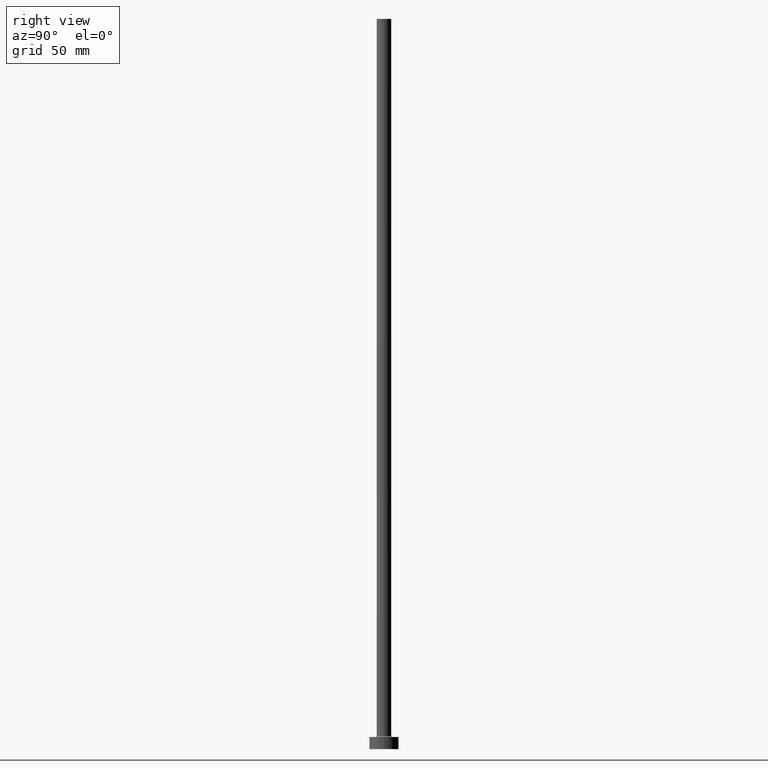
[diagram: clean part render]
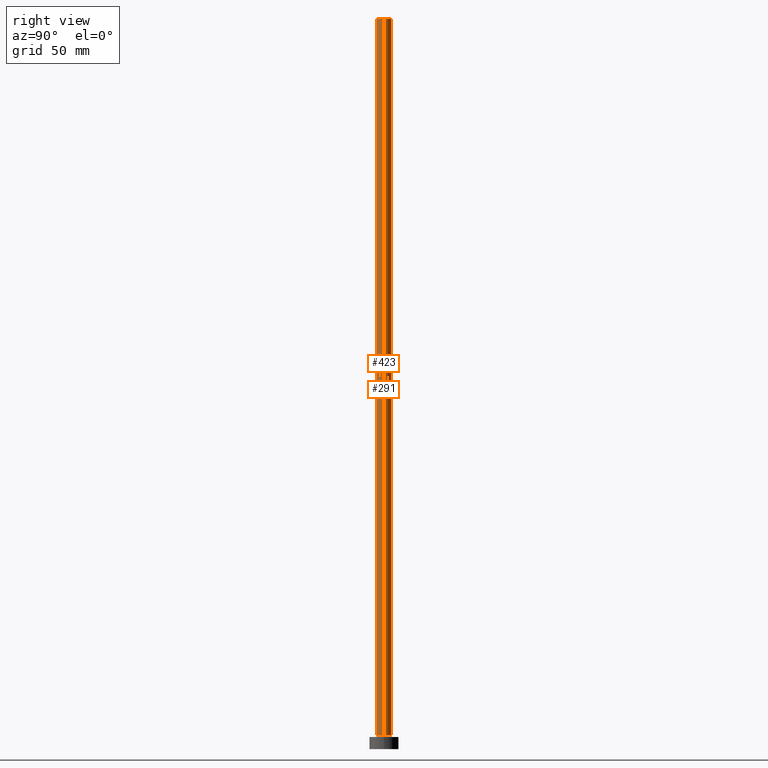
[diagram: same view with one multi-face feature highlighted, each face labeled with its STEP entity id]
A machine part, right view. The highlighted faces form ONE feature: a constant-radius fillet chain: 2 tangent blend faces with common blend radius 3 mm. The faces share edges in the B-rep.
Their STEP definitions:
[1] entity #291 (Cylinder):
#3 = VECTOR ( 'NONE', #429, 1000.000000000000000 ) ;
#9 = VERTEX_POINT ( 'NONE', #264 ) ;
#13 = CARTESIAN_POINT ( 'NONE',  ( -3.000000000000000444, 0.000000000000000000, 300.0000000000000000 ) ) ;
#25 = DIRECTION ( 'NONE',  ( -0.000000000000000000, -0.000000000000000000, -1.000000000000000000 ) ) ;
#28 = CIRCLE ( 'NONE', #298, 3.000000000000000444 ) ;
#44 = LINE ( 'NONE', #13, #77 ) ;
#64 = EDGE_CURVE ( 'NONE', #335, #323, #44, .T. ) ;
#70 = CARTESIAN_POINT ( 'NONE',  ( 0.000000000000000000, 0.000000000000000000, 5.500000000000005329 ) ) ;
#77 = VECTOR ( 'NONE', #203, 1000.000000000000000 ) ;
#86 = DIRECTION ( 'NONE',  ( 1.000000000000000000, 0.000000000000000000, 0.000000000000000000 ) ) ;
#137 = EDGE_CURVE ( 'NONE', #9, #443, #194, .T. ) ;
#194 = LINE ( 'NONE', #293, #3 ) ;
#199 = EDGE_CURVE ( 'NONE', #9, #335, #28, .T. ) ;
#200 = AXIS2_PLACEMENT_3D ( 'NONE', #70, #354, #320 ) ;
#203 = DIRECTION ( 'NONE',  ( -0.000000000000000000, -0.000000000000000000, -1.000000000000000000 ) ) ;
#231 = AXIS2_PLACEMENT_3D ( 'NONE', #358, #25, #318 ) ;
#237 = EDGE_CURVE ( 'NONE', #443, #323, #400, .T. ) ;
#257 = EDGE_LOOP ( 'NONE', ( #302, #422, #433, #279 ) ) ;
#264 = CARTESIAN_POINT ( 'NONE',  ( 3.000000000000000444, 3.673940397442060361E-16, 300.0000000000000000 ) ) ;
#268 = FACE_OUTER_BOUND ( 'NONE', #257, .T. ) ;
#279 = ORIENTED_EDGE ( 'NONE', *, *, #64, .F. ) ;
#291 = ADVANCED_FACE ( 'NONE', ( #268 ), #432, .T. ) ;
#293 = CARTESIAN_POINT ( 'NONE',  ( 3.000000000000000444, 3.673940397442060361E-16, 300.0000000000000000 ) ) ;
#298 = AXIS2_PLACEMENT_3D ( 'NONE', #430, #327, #86 ) ;
#302 = ORIENTED_EDGE ( 'NONE', *, *, #199, .F. ) ;
#318 = DIRECTION ( 'NONE',  ( -1.000000000000000000, 0.000000000000000000, 0.000000000000000000 ) ) ;
#320 = DIRECTION ( 'NONE',  ( 1.000000000000000000, 0.000000000000000000, 0.000000000000000000 ) ) ;
#323 = VERTEX_POINT ( 'NONE', #415 ) ;
#327 = DIRECTION ( 'NONE',  ( 0.000000000000000000, 0.000000000000000000, 1.000000000000000000 ) ) ;
#335 = VERTEX_POINT ( 'NONE', #439 ) ;
#354 = DIRECTION ( 'NONE',  ( 0.000000000000000000, 0.000000000000000000, 1.000000000000000000 ) ) ;
#358 = CARTESIAN_POINT ( 'NONE',  ( 0.000000000000000000, 0.000000000000000000, 300.0000000000000000 ) ) ;
#384 = CARTESIAN_POINT ( 'NONE',  ( 3.000000000000000444, 3.673940397442060361E-16, 5.500000000000005329 ) ) ;
#400 = CIRCLE ( 'NONE', #200, 3.000000000000000444 ) ;
#415 = CARTESIAN_POINT ( 'NONE',  ( -3.000000000000000444, 0.000000000000000000, 5.500000000000005329 ) ) ;
#422 = ORIENTED_EDGE ( 'NONE', *, *, #137, .T. ) ;
#429 = DIRECTION ( 'NONE',  ( -0.000000000000000000, -0.000000000000000000, -1.000000000000000000 ) ) ;
#430 = CARTESIAN_POINT ( 'NONE',  ( 0.000000000000000000, 0.000000000000000000, 300.0000000000000000 ) ) ;
#432 = CYLINDRICAL_SURFACE ( 'NONE', #231, 3.000000000000000444 ) ;
#433 = ORIENTED_EDGE ( 'NONE', *, *, #237, .T. ) ;
#439 = CARTESIAN_POINT ( 'NONE',  ( -3.000000000000000444, 0.000000000000000000, 300.0000000000000000 ) ) ;
#443 = VERTEX_POINT ( 'NONE', #384 ) ;
[2] entity #423 (Cylinder):
#3 = VECTOR ( 'NONE', #429, 1000.000000000000000 ) ;
#9 = VERTEX_POINT ( 'NONE', #264 ) ;
#13 = CARTESIAN_POINT ( 'NONE',  ( -3.000000000000000444, 0.000000000000000000, 300.0000000000000000 ) ) ;
#44 = LINE ( 'NONE', #13, #77 ) ;
#51 = AXIS2_PLACEMENT_3D ( 'NONE', #459, #153, #169 ) ;
#54 = CYLINDRICAL_SURFACE ( 'NONE', #161, 3.000000000000000444 ) ;
#64 = EDGE_CURVE ( 'NONE', #335, #323, #44, .T. ) ;
#77 = VECTOR ( 'NONE', #203, 1000.000000000000000 ) ;
#88 = CIRCLE ( 'NONE', #342, 3.000000000000000444 ) ;
#131 = ORIENTED_EDGE ( 'NONE', *, *, #308, .T. ) ;
#137 = EDGE_CURVE ( 'NONE', #9, #443, #194, .T. ) ;
#153 = DIRECTION ( 'NONE',  ( 0.000000000000000000, 0.000000000000000000, 1.000000000000000000 ) ) ;
#155 = CARTESIAN_POINT ( 'NONE',  ( 0.000000000000000000, 0.000000000000000000, 300.0000000000000000 ) ) ;
#161 = AXIS2_PLACEMENT_3D ( 'NONE', #177, #448, #253 ) ;
#169 = DIRECTION ( 'NONE',  ( 1.000000000000000000, 0.000000000000000000, 0.000000000000000000 ) ) ;
#177 = CARTESIAN_POINT ( 'NONE',  ( 0.000000000000000000, 0.000000000000000000, 300.0000000000000000 ) ) ;
#194 = LINE ( 'NONE', #293, #3 ) ;
#203 = DIRECTION ( 'NONE',  ( -0.000000000000000000, -0.000000000000000000, -1.000000000000000000 ) ) ;
#214 = EDGE_LOOP ( 'NONE', ( #311, #419, #316, #131 ) ) ;
#220 = DIRECTION ( 'NONE',  ( 0.000000000000000000, 0.000000000000000000, 1.000000000000000000 ) ) ;
#243 = EDGE_CURVE ( 'NONE', #335, #9, #88, .T. ) ;
#253 = DIRECTION ( 'NONE',  ( -1.000000000000000000, 0.000000000000000000, 0.000000000000000000 ) ) ;
#264 = CARTESIAN_POINT ( 'NONE',  ( 3.000000000000000444, 3.673940397442060361E-16, 300.0000000000000000 ) ) ;
#281 = FACE_OUTER_BOUND ( 'NONE', #214, .T. ) ;
#293 = CARTESIAN_POINT ( 'NONE',  ( 3.000000000000000444, 3.673940397442060361E-16, 300.0000000000000000 ) ) ;
#308 = EDGE_CURVE ( 'NONE', #323, #443, #424, .T. ) ;
#311 = ORIENTED_EDGE ( 'NONE', *, *, #137, .F. ) ;
#316 = ORIENTED_EDGE ( 'NONE', *, *, #64, .T. ) ;
#323 = VERTEX_POINT ( 'NONE', #415 ) ;
#335 = VERTEX_POINT ( 'NONE', #439 ) ;
#342 = AXIS2_PLACEMENT_3D ( 'NONE', #155, #220, #356 ) ;
#356 = DIRECTION ( 'NONE',  ( 1.000000000000000000, 0.000000000000000000, 0.000000000000000000 ) ) ;
#384 = CARTESIAN_POINT ( 'NONE',  ( 3.000000000000000444, 3.673940397442060361E-16, 5.500000000000005329 ) ) ;
#415 = CARTESIAN_POINT ( 'NONE',  ( -3.000000000000000444, 0.000000000000000000, 5.500000000000005329 ) ) ;
#419 = ORIENTED_EDGE ( 'NONE', *, *, #243, .F. ) ;
#423 = ADVANCED_FACE ( 'NONE', ( #281 ), #54, .T. ) ;
#424 = CIRCLE ( 'NONE', #51, 3.000000000000000444 ) ;
#429 = DIRECTION ( 'NONE',  ( -0.000000000000000000, -0.000000000000000000, -1.000000000000000000 ) ) ;
#439 = CARTESIAN_POINT ( 'NONE',  ( -3.000000000000000444, 0.000000000000000000, 300.0000000000000000 ) ) ;
#443 = VERTEX_POINT ( 'NONE', #384 ) ;
#448 = DIRECTION ( 'NONE',  ( -0.000000000000000000, -0.000000000000000000, -1.000000000000000000 ) ) ;
#459 = CARTESIAN_POINT ( 'NONE',  ( 0.000000000000000000, 0.000000000000000000, 5.500000000000005329 ) ) ;